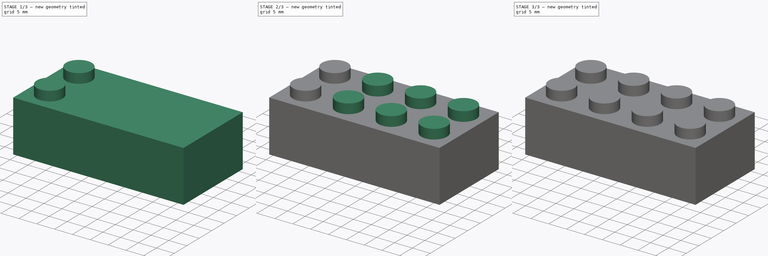
[diagram: build sequence overview — one tinted view per stage of 3, left to right]
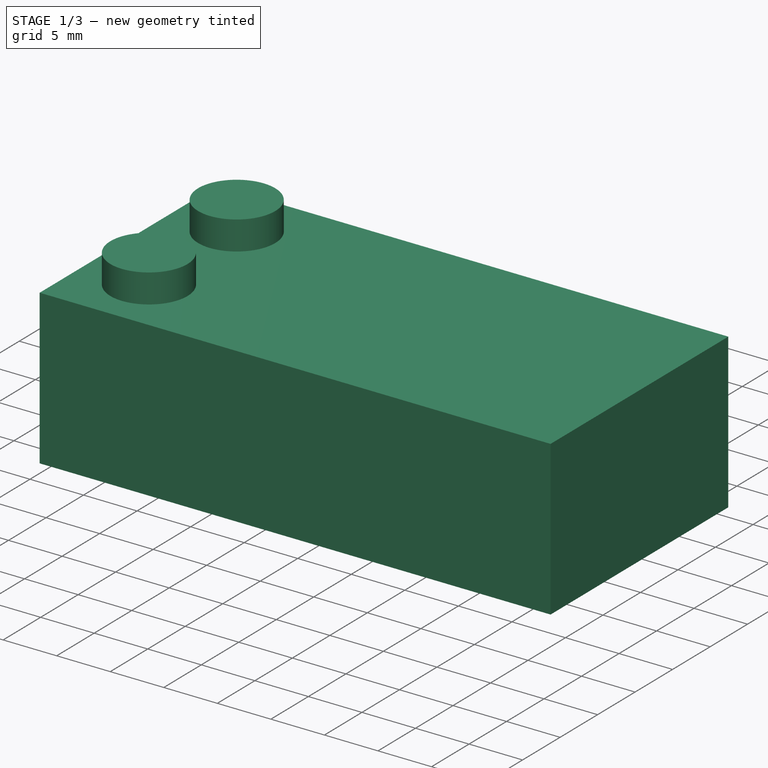
[diagram: stage 1 of 3 — iso view after this stage's code; geometry added in this stage tinted green]
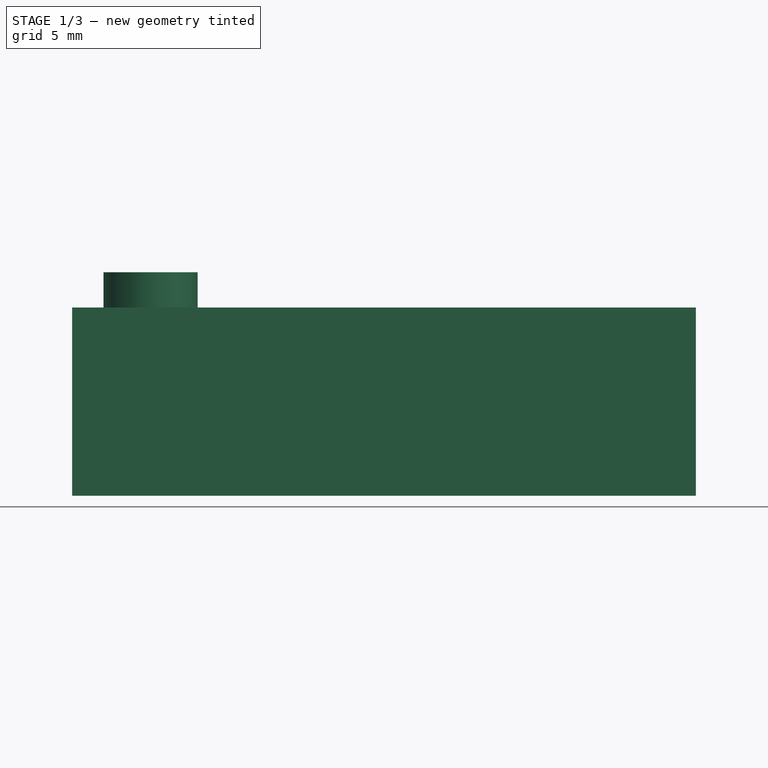
[diagram: stage 1 of 3 — front view after this stage's code; geometry added in this stage tinted green]
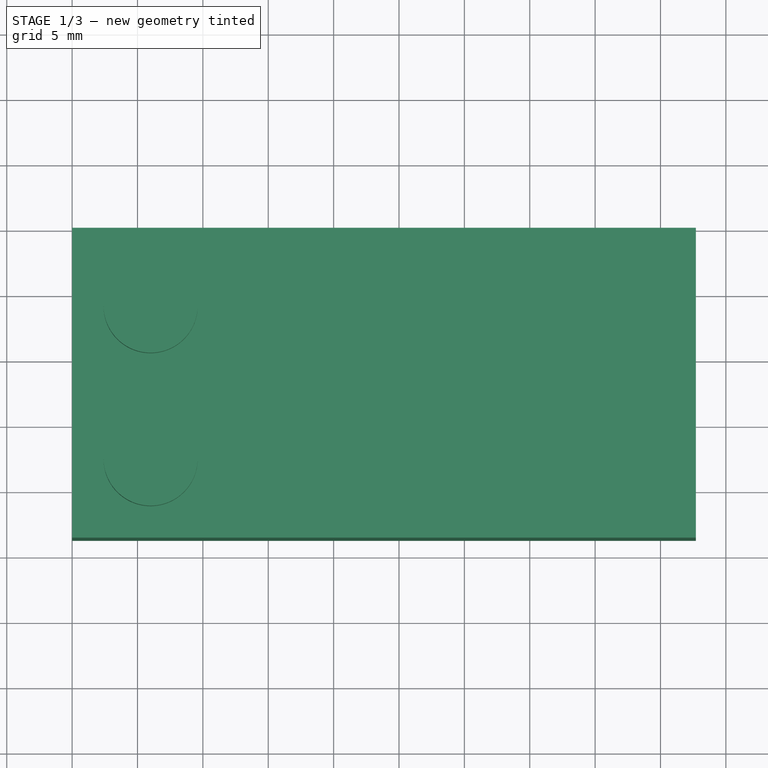
[diagram: stage 1 of 3 — top view after this stage's code; geometry added in this stage tinted green]
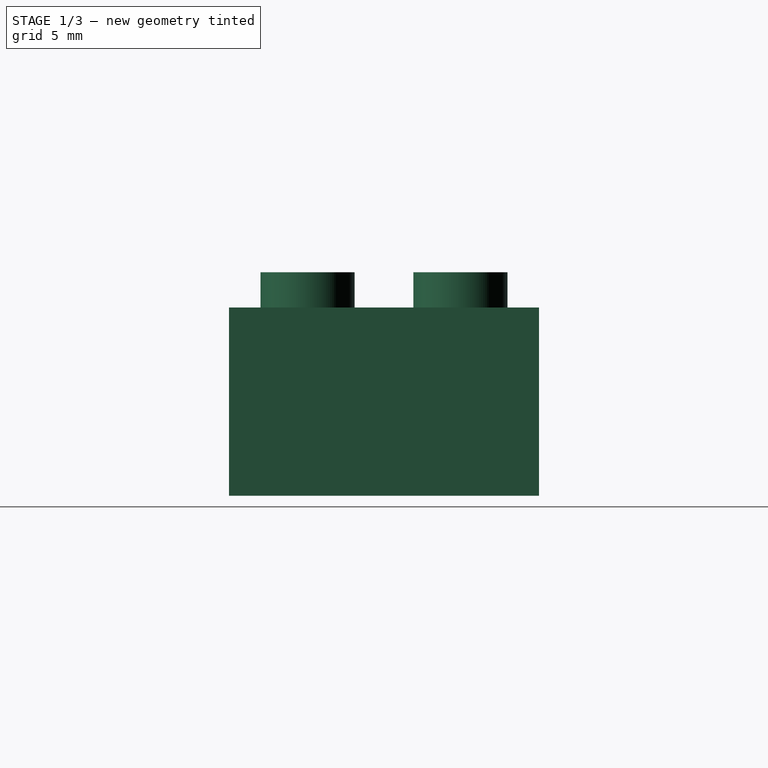
[diagram: stage 1 of 3 — right view after this stage's code; geometry added in this stage tinted green]
FCSTD DOCUMENT  (FreeCAD 0.16R6139 +1 (Git))
Label: lego
Comment: Dimensões típicas da peça em: http://www.robertcailliau.eu/Lego/Dimensions/zMeasurements-en.xhtml\n\nEsta peça tem dimensões 1.5x maiores do que a referência acima.
License: CreativeCommons Attribution
LicenseURL: http://creativecommons.org/licenses/by/4.0/
objects: Sketcher::SketchObject×5, PartDesign::Pad×3, PartDesign::LinearPattern×3, PartDesign::Pocket×2
note: 18 computed .brp shape members not serialized (recipe doc carries the construction recipe); baked Part::Feature solids carry a one-line shape summary decoded from their .brp

FEATURE [Sketcher::SketchObject] Sketch
  expr: Constraints[8] = 31.8mm * 1.5
  expr: Constraints[9] = 15.8mm * 1.5
  sketch-geometry (4):
    g0: LineSegment StartX=0 StartY=0 StartZ=0 EndX=47.7 EndY=0 EndZ=0
    g1: LineSegment StartX=47.7 StartY=0 StartZ=0 EndX=47.7 EndY=-23.7 EndZ=0
    g2: LineSegment StartX=47.7 StartY=-23.7 StartZ=0 EndX=0 EndY=-23.7 EndZ=0
    g3: LineSegment StartX=0 StartY=-23.7 StartZ=0 EndX=0 EndY=0 EndZ=0
  constraints (11):
    c: Coincident(g0,g1)
    c: Coincident(g1,g2)
    c: Coincident(g2,g3)
    c: Coincident(g3,g0)
    c: Horizontal(g0)
    c: Horizontal(g2)
    c: Vertical(g1)
    c: Vertical(g3)
    c: DistanceX(g0) = 47.7
    c: DistanceY(g3) = 23.7
    c: Coincident(g0,g-1)
FEATURE [PartDesign::Pad] Pad
  Length = 14.4
  Length2 = 100
  Sketch = -> Sketch
  Type = 0
  expr: Length = 9.6mm * 1.5
FEATURE [Sketcher::SketchObject] Sketch001
  ExternalGeometry = -> [Pad]
  Placement = pos=(0,0,0) rot=(1,0,0;3.14159rad)
  Support = -> Pad [Face5]
  expr: Constraints[8] = 1.2mm * 1.5
  sketch-geometry (4):
    g0: LineSegment StartX=1.8 StartY=21.9 StartZ=0 EndX=45.9 EndY=21.9 EndZ=0
    g1: LineSegment StartX=45.9 StartY=21.9 StartZ=0 EndX=45.9 EndY=1.8 EndZ=0
    g2: LineSegment StartX=45.9 StartY=1.8 StartZ=0 EndX=1.8 EndY=1.8 EndZ=0
    g3: LineSegment StartX=1.8 StartY=1.8 StartZ=0 EndX=1.8 EndY=21.9 EndZ=0
  constraints (12):
    c: Coincident(g0,g1)
    c: Coincident(g1,g2)
    c: Coincident(g2,g3)
    c: Coincident(g3,g0)
    c: Horizontal(g0)
    c: Horizontal(g2)
    c: Vertical(g1)
    c: Vertical(g3)
    c: DistanceX(g-3,g0) = 1.8
    c: DistanceY(g0,g-3) = 1.8
    c: DistanceX(g1,g-4) = 1.8
    c: DistanceY(g1,g-4) = -1.8
FEATURE [PartDesign::Pocket] Pocket
  Length = 12.6
  Sketch = -> Sketch001
  Type = 0
  expr: Length = (9.6mm - 1.2mm) * 1.5
FEATURE [Sketcher::SketchObject] Sketch002
  ExternalGeometry = -> [Pocket]
  Placement = pos=(0,0,14.4) rot=(0,0,1;0rad)
  Support = -> Pocket [Face5]
  expr: Constraints[0] = 2.4mm * 1.5
  expr: Constraints[1] = -(4mm) * 1.5
  sketch-geometry (2):
    g0: Circle CenterX=6 CenterY=-17.7 CenterZ=0 NormalX=0 NormalY=0 NormalZ=1 Radius=3.6
    g1: Circle CenterX=6 CenterY=-6 CenterZ=0 NormalX=0 NormalY=0 NormalZ=1 Radius=3.6
  constraints (6):
    c: Radius(g0) = 3.6
    c: DistanceX(g0,g-3) = -6
    c: DistanceY(g0,g-3) = -6
    c: Radius(g1) = 3.6
    c: DistanceX(g-1,g1) = 6
    c: DistanceY(g-1,g1) = -6
FEATURE [PartDesign::Pad] Pad001
  Length = 2.7
  Length2 = 100
  Sketch = -> Sketch002
  Type = 0
  expr: Length = 1.8mm * 1.5
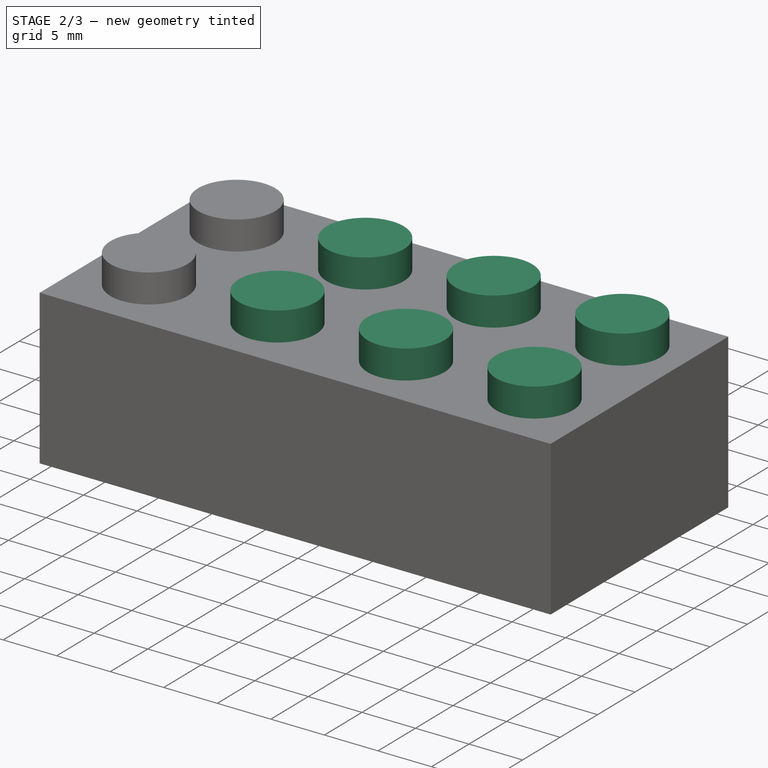
[diagram: stage 2 of 3 — iso view after this stage's code; geometry added in this stage tinted green]
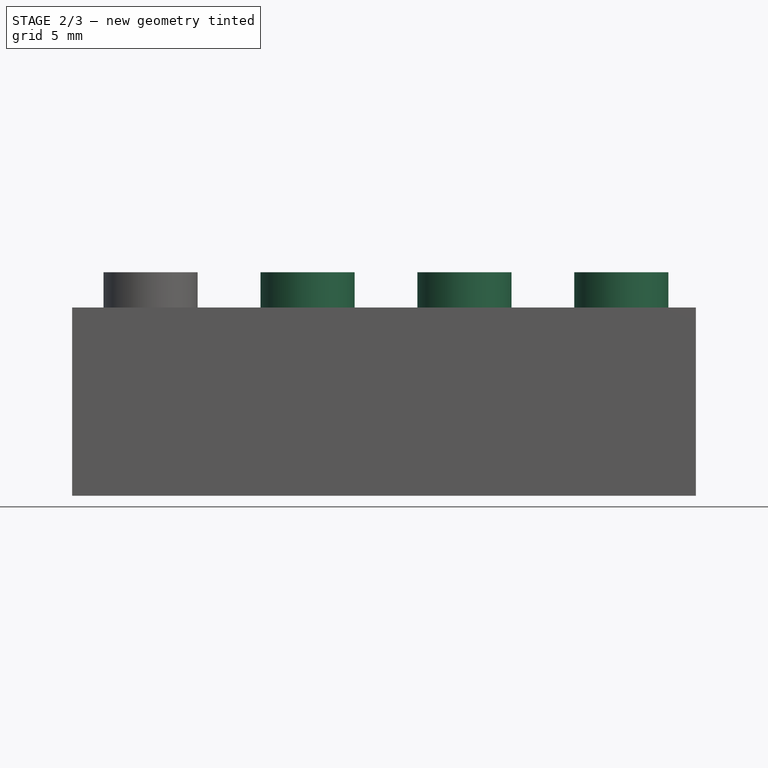
[diagram: stage 2 of 3 — front view after this stage's code; geometry added in this stage tinted green]
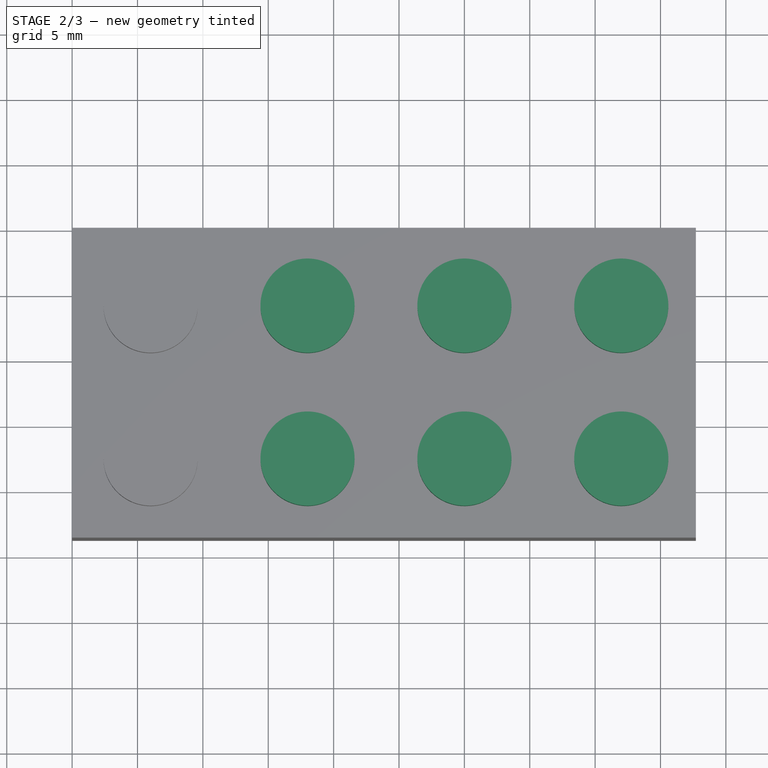
[diagram: stage 2 of 3 — top view after this stage's code; geometry added in this stage tinted green]
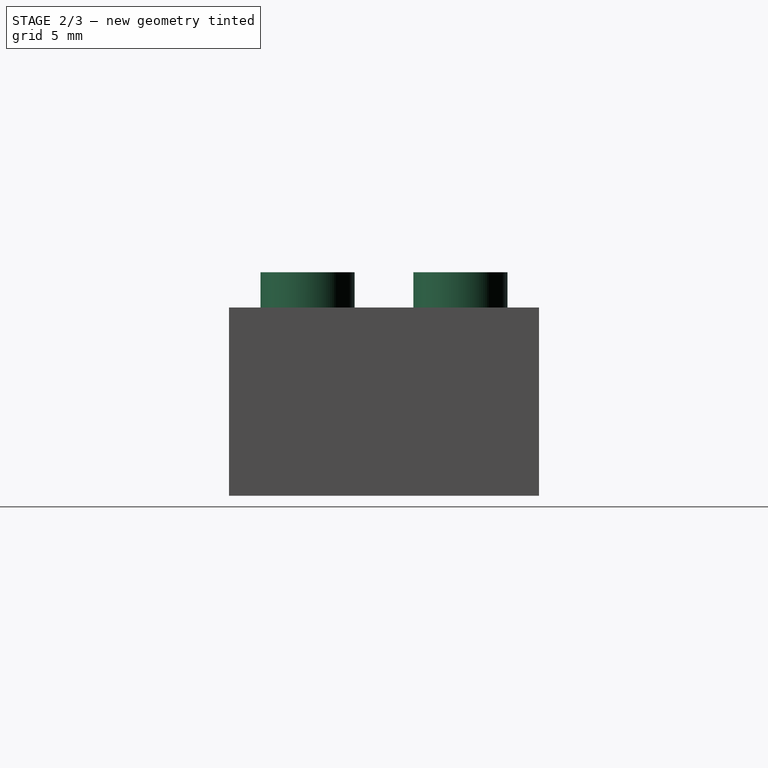
[diagram: stage 2 of 3 — right view after this stage's code; geometry added in this stage tinted green]
FEATURE [PartDesign::LinearPattern] LinearPattern
  Direction = -> Sketch002 [H_Axis]
  Length = 36
  Occurrences = 4
  Originals = -> [Pad001]
  expr: Length = 8mm * 1.5 * 3
FEATURE [Sketcher::SketchObject] Sketch003
  ExternalGeometry = -> [LinearPattern]
  Placement = pos=(0,0,12.6) rot=(1,0,0;3.14159rad)
  Support = -> LinearPattern [Face19]
  expr: Constraints[0] = 6.51mm / 2 * 1.5
  expr: Constraints[1] = (8mm - 1.2mm) * 1.5
  sketch-geometry (1):
    g0: Circle CenterX=12 CenterY=11.7 CenterZ=0 NormalX=0 NormalY=0 NormalZ=1 Radius=4.8825
  constraints (3):
    c: Radius(g0) = 4.8825
    c: DistanceX(g-3,g0) = 10.2
    c: DistanceY(g-3,g0) = -10.2
FEATURE [PartDesign::Pad] Pad002
  Length = 12.6
  Length2 = 100
  Sketch = -> Sketch003
  Type = 0
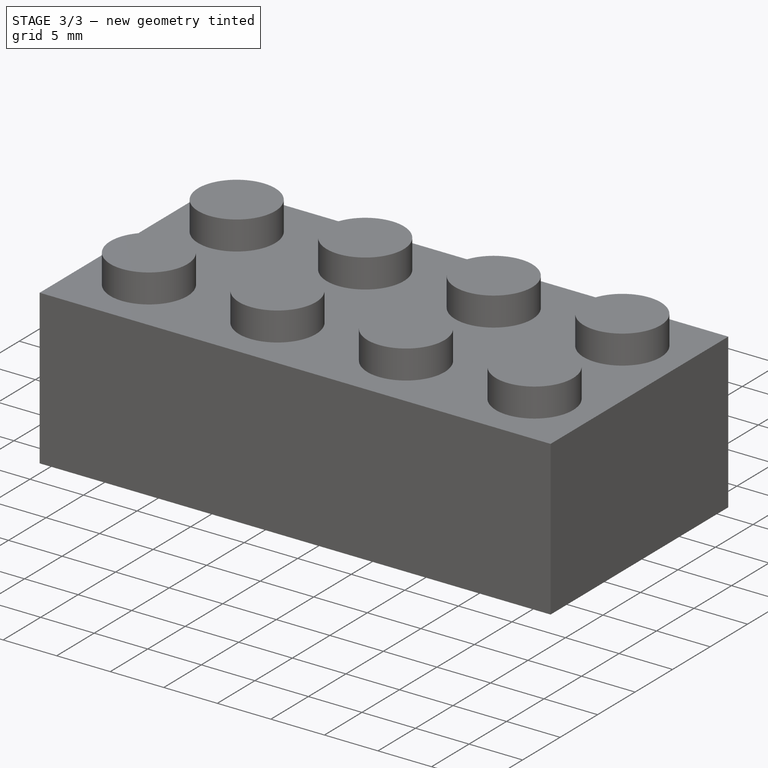
[diagram: stage 3 of 3 — iso view after this stage's code; geometry added in this stage tinted green]
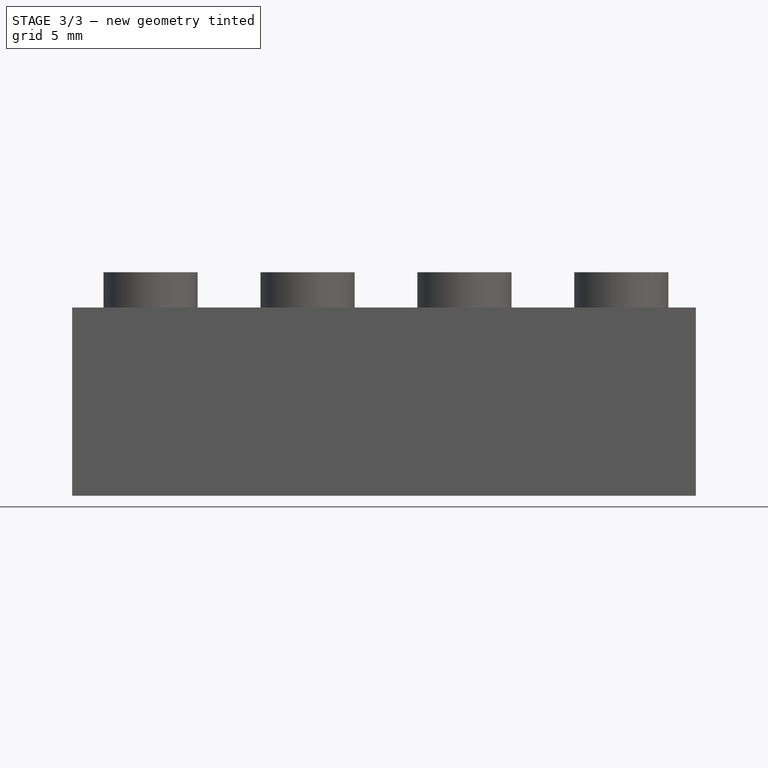
[diagram: stage 3 of 3 — front view after this stage's code; geometry added in this stage tinted green]
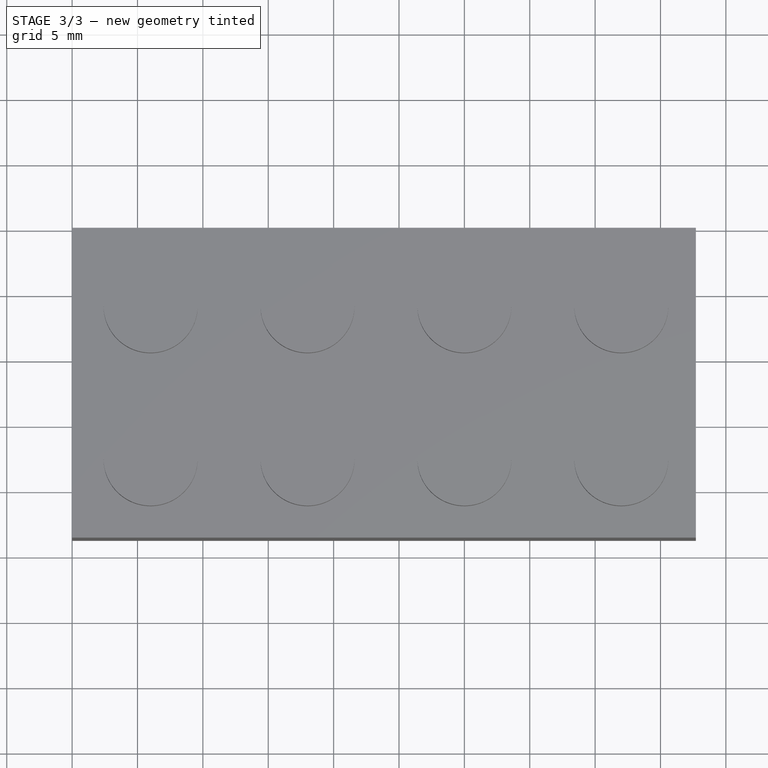
[diagram: stage 3 of 3 — top view after this stage's code; geometry added in this stage tinted green]
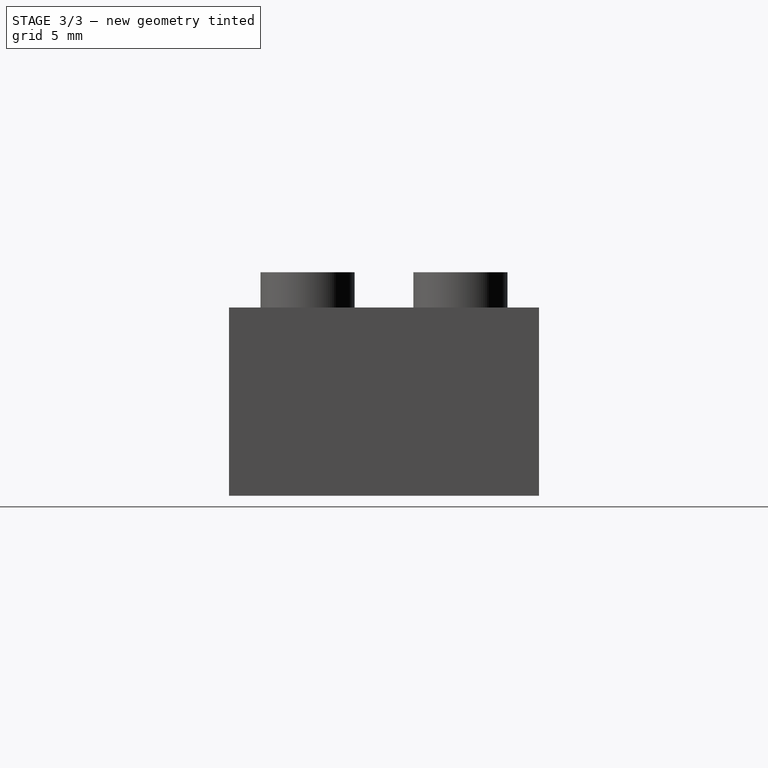
[diagram: stage 3 of 3 — right view after this stage's code; geometry added in this stage tinted green]
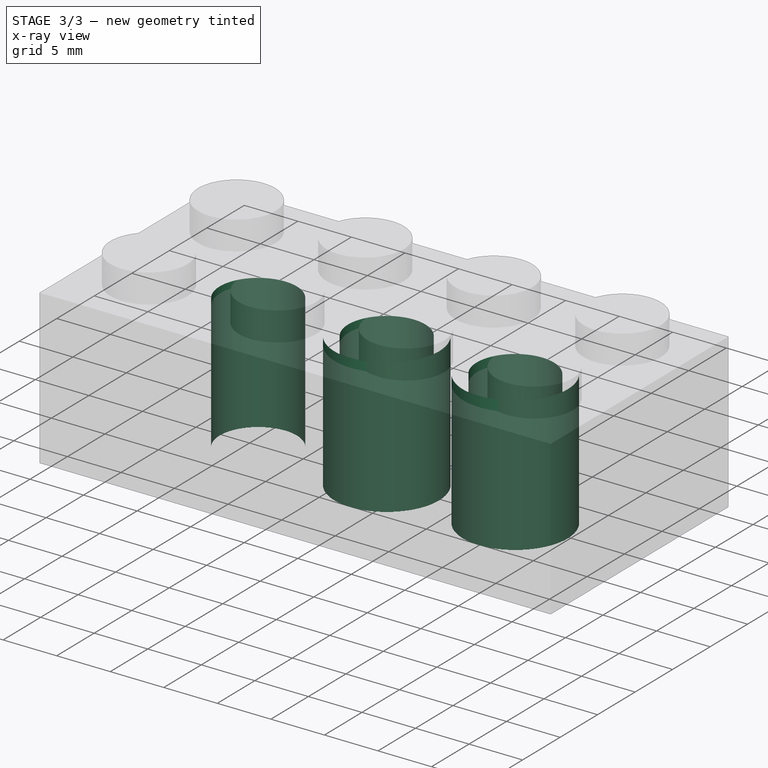
[diagram: stage 3 of 3 — x-ray composite at the iso view; earlier geometry ghosted, this stage's added geometry solid]
FEATURE [PartDesign::LinearPattern] LinearPattern001
  Direction = -> Sketch003 [H_Axis]
  Length = 24
  Occurrences = 3
  Originals = -> [Pad002]
  expr: Length = 8mm * 2 * 1.5
FEATURE [Sketcher::SketchObject] Sketch004
  ExternalGeometry = -> [LinearPattern001]
  Placement = pos=(0,0,0) rot=(1,0,0;3.14159rad)
  Support = -> LinearPattern001 [Face32]
  expr: Constraints[1] = 4.8 / 2 * 1.5
  sketch-geometry (1):
    g0: Circle CenterX=12 CenterY=11.7 CenterZ=0 NormalX=0 NormalY=0 NormalZ=1 Radius=3.6
  constraints (2):
    c: Coincident(g-3,g0)
    c: Radius(g0) = 3.6
FEATURE [PartDesign::Pocket] Pocket001
  Length = 12.6
  Sketch = -> Sketch004
  Type = 0
FEATURE [PartDesign::LinearPattern] LinearPattern002
  Direction = -> Sketch004 [H_Axis]
  Length = 24
  Occurrences = 3
  Originals = -> [Pocket001]
  expr: Length = 8 * 2 * 1.5
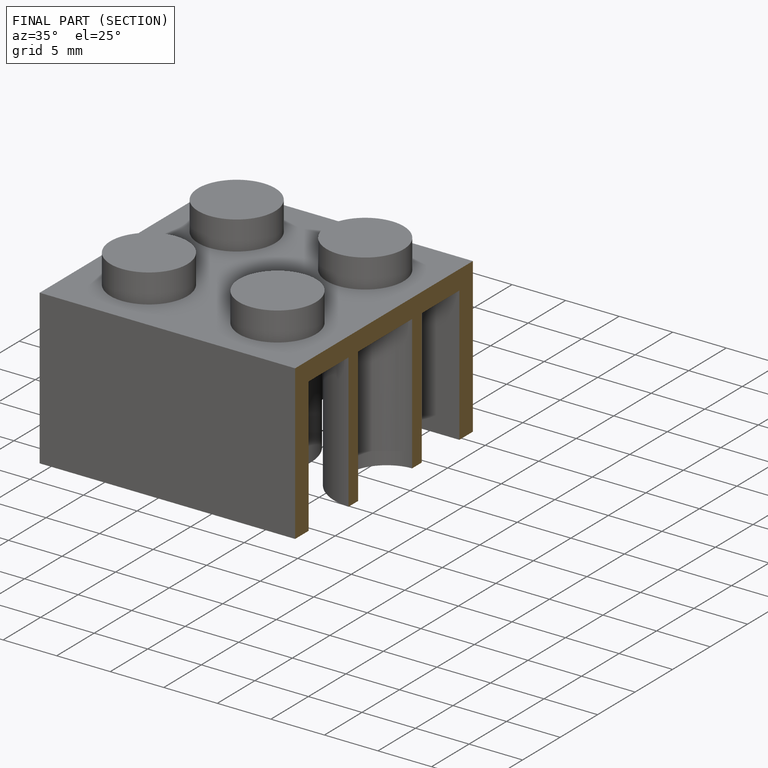
[diagram: finished part — half-section view (interior)]
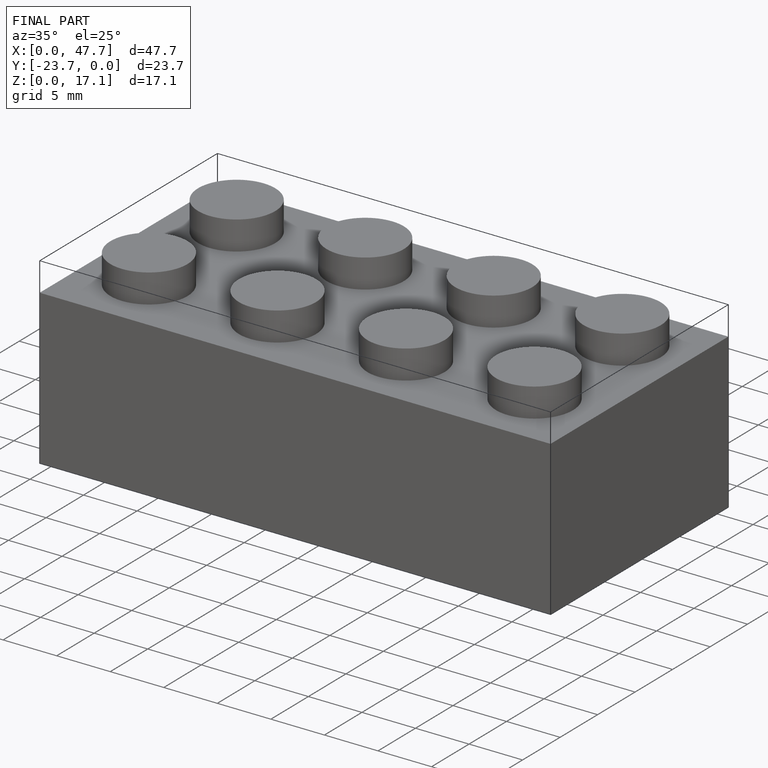
[diagram: finished part — iso view with bounding-box wireframe]
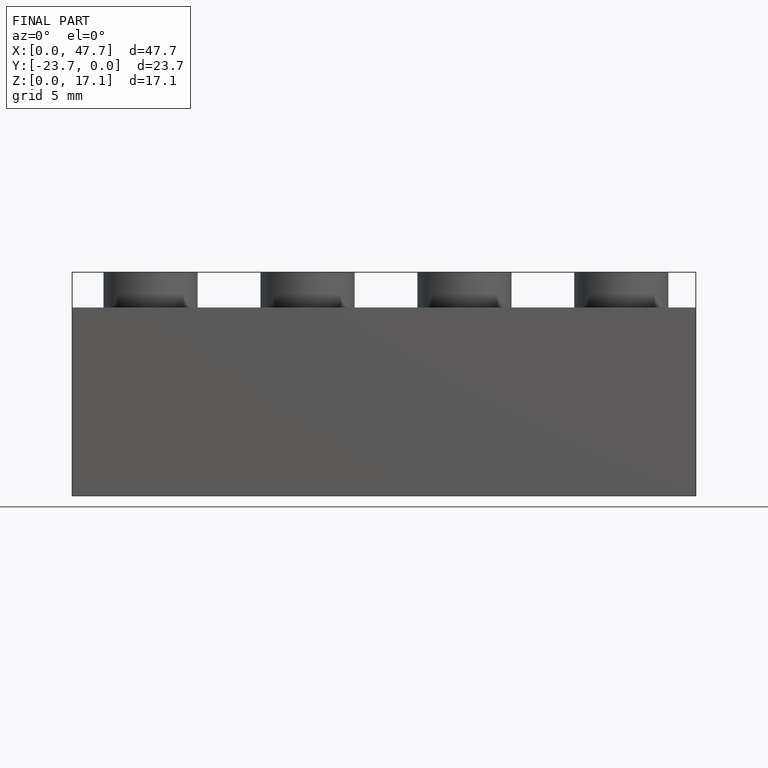
[diagram: finished part — front view with bounding-box wireframe]
